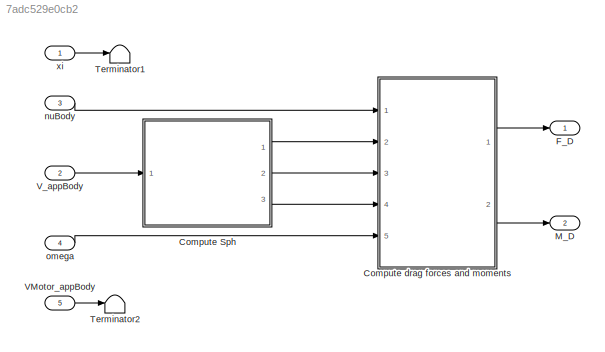
MODEL slx_7adc529e0cb2
KIND model
CONFIG AbsTol = auto
CONFIG EnableMultiTasking = on
CONFIG FixedStep = auto
CONFIG MaxStep = auto
CONFIG MinStep = auto
CONFIG RelTol = 1e-3
CONFIG SampleTimeConstraint = Unconstrained
CONFIG SolverName = VariableStepAuto
CONFIG StartTime = 0.0
CONFIG StopTime = 10.0
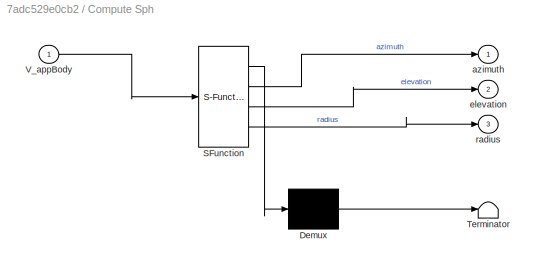
BLOCK [SubSystem] Compute Sph
  ErrorFcn = Stateflow.Translate.translate
  PermitHierarchicalResolution = ExplicitOnly
  Ports = [1, 3]
  RequestExecContextInheritance = off
  SFBlockType = MATLAB Function
  TreatAsAtomicUnit = on
BLOCK [Demux] Compute Sph/ Demux 
  Outputs = 1
  Ports = [1, 1]
BLOCK [S-Function] Compute Sph/ SFunction 
  EnableBusSupport = on
  FunctionName = sf_sfun
  PortCounts = [1 4]
  Ports = [1, 4]
  SFcnIsStateOwnerBlock = off
  SFunctionDeploymentMode = off
  Tag = Stateflow S-Function 1
BLOCK [Terminator] Compute Sph/ Terminator 
BLOCK [Inport] Compute Sph/V_appBody
BLOCK [Outport] Compute Sph/azimuth
  VectorParamsAs1DForOutWhenUnconnected = off
BLOCK [Outport] Compute Sph/elevation
  Port = 2
  VectorParamsAs1DForOutWhenUnconnected = off
BLOCK [Outport] Compute Sph/radius
  Port = 3
  VectorParamsAs1DForOutWhenUnconnected = off
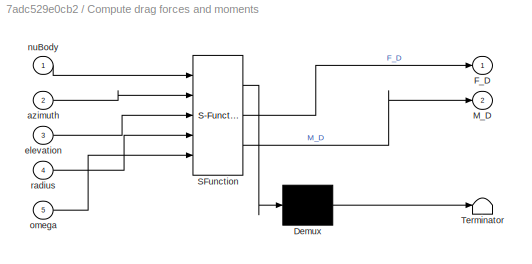
BLOCK [SubSystem] Compute drag forces and moments
  ErrorFcn = Stateflow.Translate.translate
  PermitHierarchicalResolution = ExplicitOnly
  Ports = [5, 2]
  RequestExecContextInheritance = off
  SFBlockType = MATLAB Function
  TreatAsAtomicUnit = on
BLOCK [Demux] Compute drag forces and moments/ Demux 
  Outputs = 1
  Ports = [1, 1]
BLOCK [S-Function] Compute drag forces and moments/ SFunction 
  EnableBusSupport = on
  FunctionName = sf_sfun
  Parameters = Uav
  PortCounts = [5 3]
  Ports = [5, 3]
  SFcnIsStateOwnerBlock = off
  SFunctionDeploymentMode = off
  Tag = Stateflow S-Function 2
BLOCK [Terminator] Compute drag forces and moments/ Terminator 
BLOCK [Outport] Compute drag forces and moments/F_D
  VectorParamsAs1DForOutWhenUnconnected = off
BLOCK [Outport] Compute drag forces and moments/M_D
  Port = 2
  VectorParamsAs1DForOutWhenUnconnected = off
BLOCK [Inport] Compute drag forces and moments/azimuth
  Port = 2
BLOCK [Inport] Compute drag forces and moments/elevation
  Port = 3
BLOCK [Inport] Compute drag forces and moments/nuBody
BLOCK [Inport] Compute drag forces and moments/omega
  Port = 5
BLOCK [Inport] Compute drag forces and moments/radius
  Port = 4
BLOCK [Outport] F_D
  Unit = N
  VectorParamsAs1DForOutWhenUnconnected = off
BLOCK [Outport] M_D
  Port = 2
  Unit = N*m
  VectorParamsAs1DForOutWhenUnconnected = off
BLOCK [Terminator] Terminator1
BLOCK [Terminator] Terminator2
BLOCK [Inport] VMotor_appBody
  Port = 5
  PortDimensions = [3,4]
  Unit = m/s
BLOCK [Inport] V_appBody
  Port = 2
  PortDimensions = 3
  Unit = m/s
BLOCK [Inport] nuBody
  Port = 3
  PortDimensions = 3
  Unit = rad/s
BLOCK [Inport] omega
  Port = 4
  PortDimensions = Uav.N_ROTORS
  Unit = rad/s
BLOCK [Inport] xi
  PortDimensions = 3
  Unit = m
LINE Compute Sph:1 -> Compute drag forces and moments:2
LINE Compute Sph:2 -> Compute drag forces and moments:3
LINE Compute Sph:3 -> Compute drag forces and moments:4
LINE Compute drag forces and moments:1 -> F_D:1
LINE Compute drag forces and moments:2 -> M_D:1
LINE VMotor_appBody:1 -> Terminator2:1
LINE V_appBody:1 -> Compute Sph:1
LINE nuBody:1 -> Compute drag forces and moments:1
LINE omega:1 -> Compute drag forces and moments:5
LINE xi:1 -> Terminator1:1
CHART Compute Sph states=1 transitions=1
  STATE_LABEL 'eML_blk_kernel()'
  STATE_LABEL 'SCRIPT:\nfunction [azimuth, elevation, radius] = computeSph(V_appBody)\n%#codegen\n\n% Convert from polar to spherical coordinates\n[ azimuth, elevation, radius ] = cart2sph( V_appBody(1), V_appBody(2), V_appBody(3) );'
CHART Compute drag forces and moments states=1 transitions=1
  STATE_LABEL 'eML_blk_kernel()'
  STATE_LABEL "SCRIPT:\nfunction [F_D, M_D] = computeDrag(nuBody, azimuth, elevation, radius, omega, Uav)\n%#codegen\n\n% Margin to prevent shattering - doesn't seem to work\n% for i = 1:3\n%     if ( ( V_appBody(i) > -0.002 ) && ( V_appBody(i) < 0.002 ) )\n%         V_appBody(i) = 0;\n%     end\n% end\n\n% Convert from polar to spherical coordinates\n% [ azimuth, elevation, radius ] = cart2sph( V_appBody(1), V_appBody(2), ...<+1847ch>"
CHART  states=0 transitions=0
CHART  states=0 transitions=0
